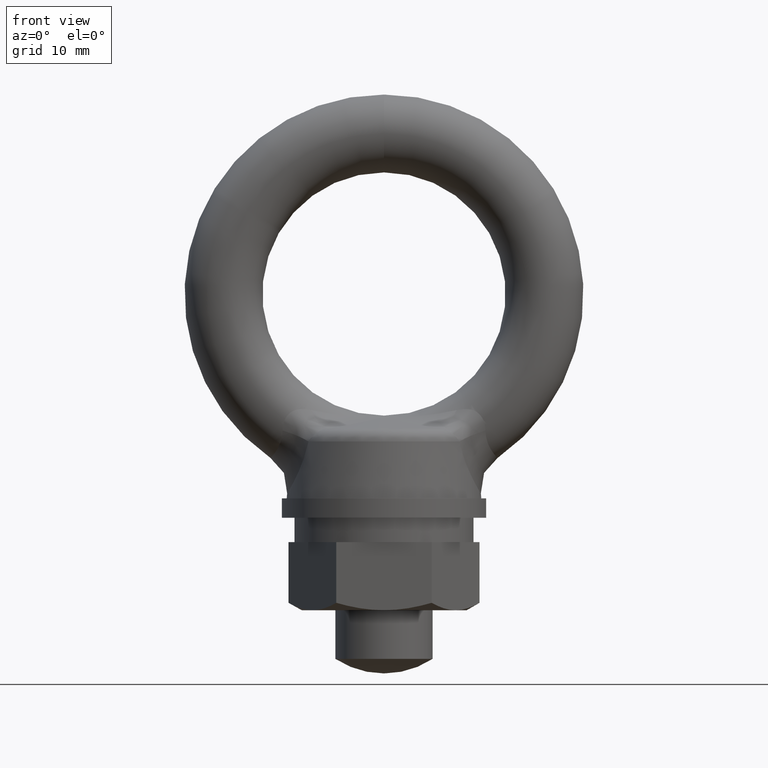
[diagram: clean part render]
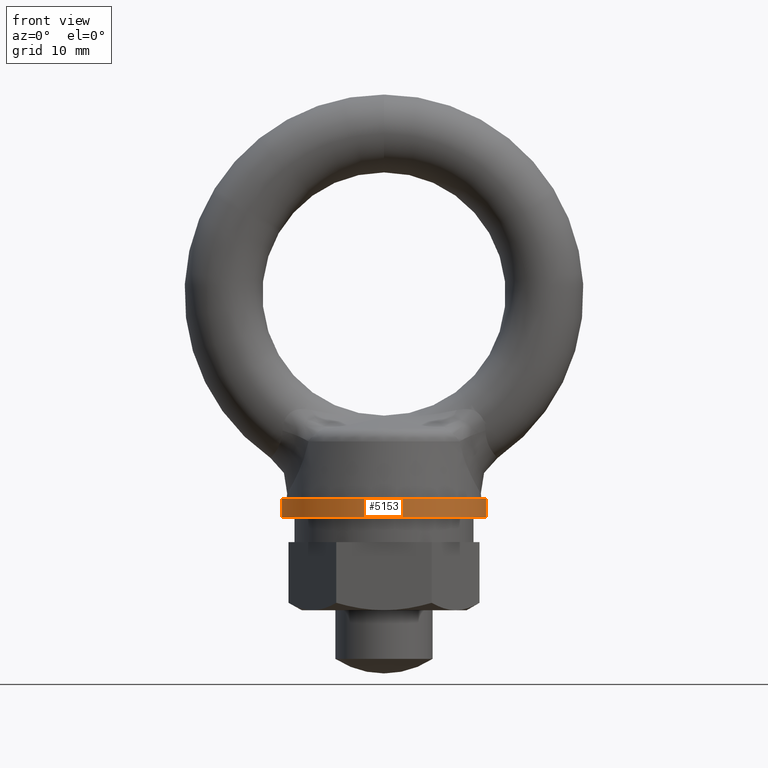
[diagram: same view with one face highlighted and labeled with its STEP entity id]
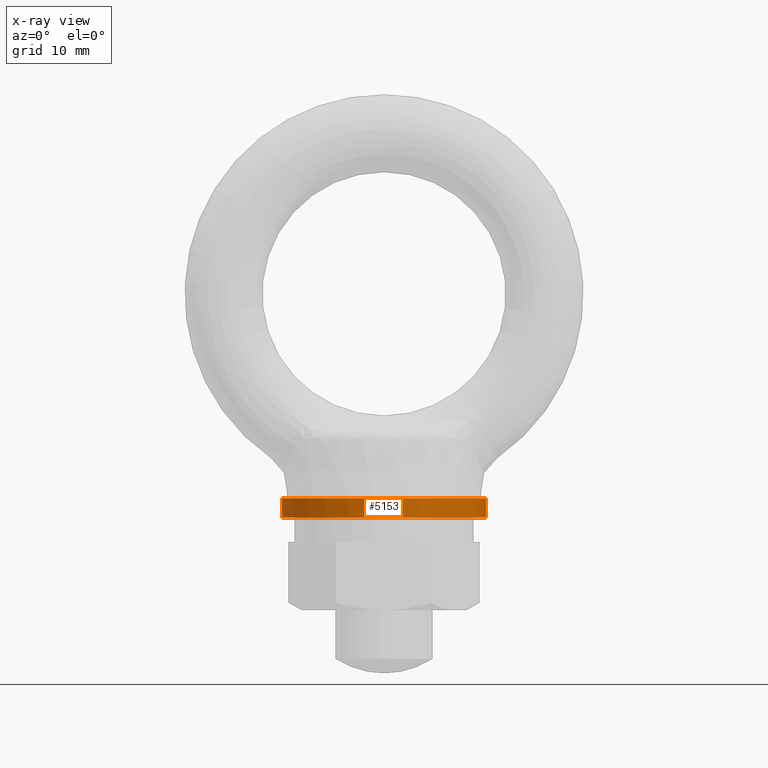
[diagram: x-ray of the same camera — body ghosted, the highlighted face saturated]
A machine part, front view. The second image highlights one B-rep face of the part: STEP entity #5153.
The next image is the same camera in x-ray: the body ghosted, the highlighted face saturated — about 0% of this face is hidden behind the body in this view.
In plain terms, the highlighted cylindrical surface (partial cylindrical patch) has radius 10.5 mm, axis along (0, 0, -1).
Its self-contained STEP definition (entity closure, byte-faithful):
#1369 = DIRECTION ( 'NONE',  ( 1.000000000000000000, 0.0000000000000000000, 0.0000000000000000000 ) ) ;
#1370 = DIRECTION ( 'NONE',  ( 0.0000000000000000000, 0.0000000000000000000, -1.000000000000000000 ) ) ;
#1371 = CARTESIAN_POINT ( 'NONE',  ( 0.0000000000000000000, 0.0000000000000000000, -21.00000000000000000 ) ) ;
#1372 = AXIS2_PLACEMENT_3D ( 'NONE', #1371, #1370, #1369 ) ;
#1373 = DIRECTION ( 'NONE',  ( -1.000000000000000000, 0.0000000000000000000, 0.0000000000000000000 ) ) ;
#1374 = DIRECTION ( 'NONE',  ( 0.0000000000000000000, 0.0000000000000000000, -1.000000000000000000 ) ) ;
#1375 = CARTESIAN_POINT ( 'NONE',  ( 0.0000000000000000000, 0.0000000000000000000, 977.0000000000000000 ) ) ;
#1376 = AXIS2_PLACEMENT_3D ( 'NONE', #1375, #1374, #1373 ) ;
#1377 = CIRCLE ( 'NONE', #1372, 10.50000000000000000 ) ;
#1378 = CYLINDRICAL_SURFACE ( 'NONE', #1376, 10.50000000000000000 ) ;
#1379 = FACE_OUTER_BOUND ( 'NONE', #5154, .T. ) ;
#1463 = CARTESIAN_POINT ( 'NONE',  ( -10.50000000000000000, 0.0000000000000000000, -23.00000000000000000 ) ) ;
#1492 = CARTESIAN_POINT ( 'NONE',  ( 10.50000000000000000, 1.285836671513496100E-015, -21.00000000000000000 ) ) ;
#1508 = DIRECTION ( 'NONE',  ( 0.0000000000000000000, 0.0000000000000000000, -1.000000000000000000 ) ) ;
#1509 = VECTOR ( 'NONE', #1508, 1000.000000000000000 ) ;
#1510 = CARTESIAN_POINT ( 'NONE',  ( 10.50000000000000000, 1.285836671513496100E-015, 977.0000000000000000 ) ) ;
#1511 = LINE ( 'NONE', #1510, #1509 ) ;
#1512 = CARTESIAN_POINT ( 'NONE',  ( 10.50000000000000000, 1.285836671513496100E-015, -23.00000000000000000 ) ) ;
#1519 = CARTESIAN_POINT ( 'NONE',  ( -10.50000000000000000, 0.0000000000000000000, -21.00000000000000000 ) ) ;
#1906 = VECTOR ( 'NONE', #1948, 1000.000000000000000 ) ;
#1907 = CARTESIAN_POINT ( 'NONE',  ( -10.50000000000000000, 0.0000000000000000000, 977.0000000000000000 ) ) ;
#1908 = LINE ( 'NONE', #1907, #1906 ) ;
#1948 = DIRECTION ( 'NONE',  ( 0.0000000000000000000, 0.0000000000000000000, -1.000000000000000000 ) ) ;
#1962 = CARTESIAN_POINT ( 'NONE',  ( 0.0000000000000000000, 0.0000000000000000000, -23.00000000000000000 ) ) ;
#1992 = AXIS2_PLACEMENT_3D ( 'NONE', #1962, #2047, #2046 ) ;
#1993 = CIRCLE ( 'NONE', #1992, 10.50000000000000000 ) ;
#2046 = DIRECTION ( 'NONE',  ( 1.000000000000000000, 0.0000000000000000000, 0.0000000000000000000 ) ) ;
#2047 = DIRECTION ( 'NONE',  ( 0.0000000000000000000, 0.0000000000000000000, -1.000000000000000000 ) ) ;
#5153 = ADVANCED_FACE ( 'NONE', ( #1379 ), #1378, .T. ) ;
#5154 = EDGE_LOOP ( 'NONE', ( #5155, #5156, #5158, #5283 ) ) ;
#5155 = ORIENTED_EDGE ( 'NONE', *, *, #5199, .F. ) ;
#5156 = ORIENTED_EDGE ( 'NONE', *, *, #5157, .T. ) ;
#5157 = EDGE_CURVE ( 'NONE', #5170, #5193, #1377, .T. ) ;
#5158 = ORIENTED_EDGE ( 'NONE', *, *, #5302, .T. ) ;
#5170 = VERTEX_POINT ( 'NONE', #1492 ) ;
#5193 = VERTEX_POINT ( 'NONE', #1519 ) ;
#5198 = VERTEX_POINT ( 'NONE', #1512 ) ;
#5199 = EDGE_CURVE ( 'NONE', #5170, #5198, #1511, .T. ) ;
#5202 = VERTEX_POINT ( 'NONE', #1463 ) ;
#5283 = ORIENTED_EDGE ( 'NONE', *, *, #5284, .F. ) ;
#5284 = EDGE_CURVE ( 'NONE', #5198, #5202, #1993, .T. ) ;
#5302 = EDGE_CURVE ( 'NONE', #5193, #5202, #1908, .T. ) ;